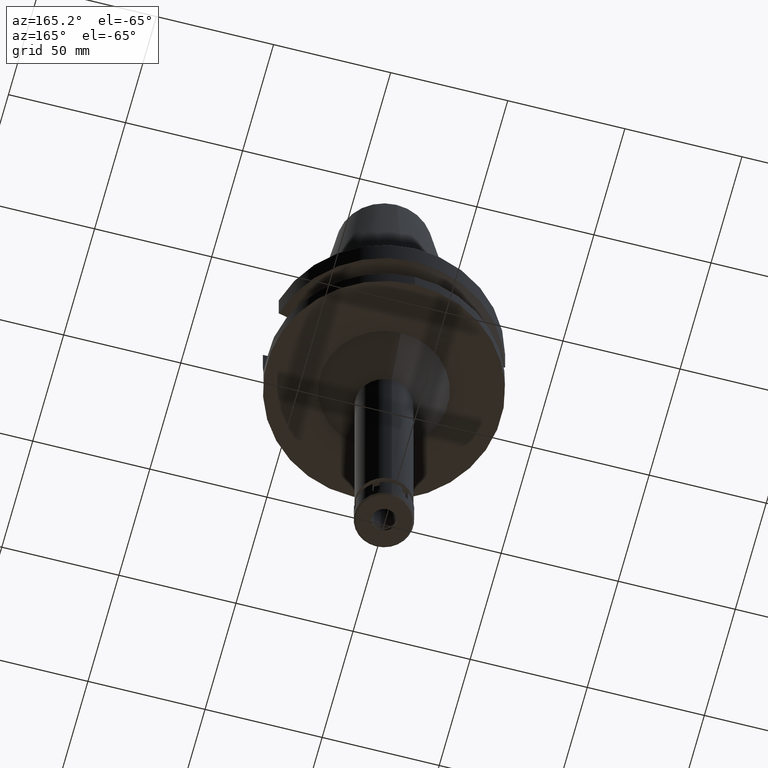
[diagram: clean part render]
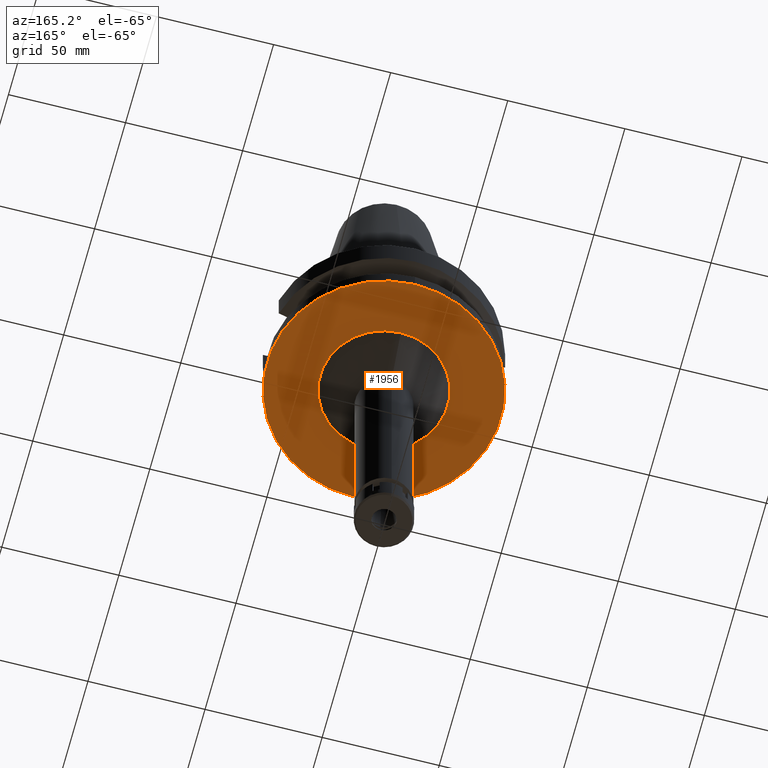
[diagram: same view with one face highlighted and labeled with its STEP entity id]
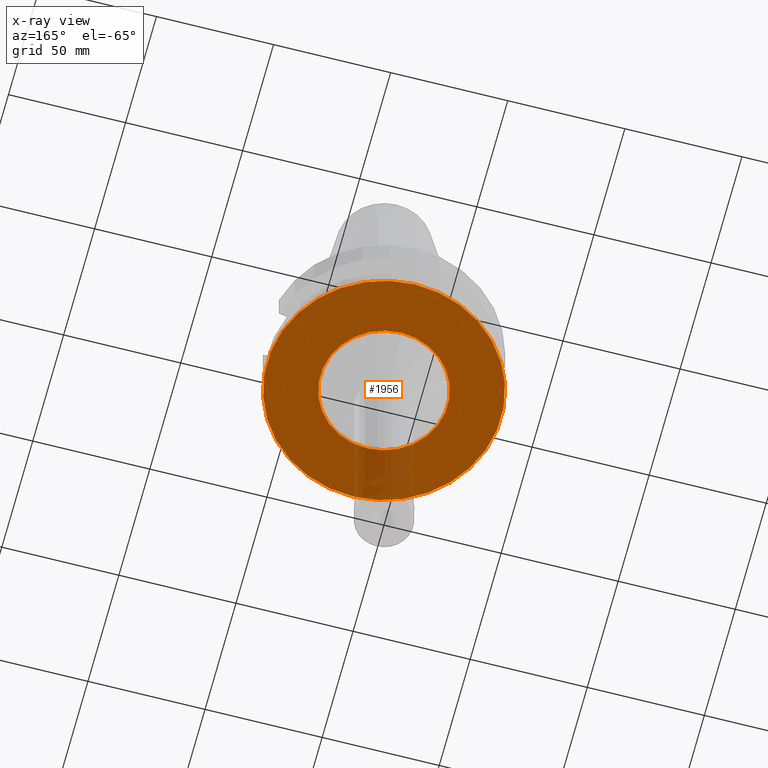
[diagram: x-ray of the same camera — body ghosted, the highlighted face saturated]
A machine part, auxiliary view. The second image highlights one B-rep face of the part: STEP entity #1956.
The next image is the same camera in x-ray: the body ghosted, the highlighted face saturated — about 10% of this face is hidden behind the body in this view.
In plain terms, the highlighted planar face has unit normal (0, 0, -1).
Its self-contained STEP definition (entity closure, byte-faithful):
#22 = CARTESIAN_POINT ( 'NONE',  ( 0.0000000000000000000, 0.0000000000000000000, -38.00000000000000000 ) ) ;
#61 = PLANE ( 'NONE',  #2738 ) ;
#264 = CARTESIAN_POINT ( 'NONE',  ( 0.0000000000000000000, 2.631031183287999807E-14, -38.00000000000000000 ) ) ;
#272 = CARTESIAN_POINT ( 'NONE',  ( 0.0000000000000000000, -50.00000000000000000, -38.00000000000000000 ) ) ;
#323 = DIRECTION ( 'NONE',  ( 0.0000000000000000000, 1.000000000000000000, 0.0000000000000000000 ) ) ;
#362 = FACE_BOUND ( 'NONE', #3093, .T. ) ;
#413 = AXIS2_PLACEMENT_3D ( 'NONE', #264, #609, #2019 ) ;
#519 = AXIS2_PLACEMENT_3D ( 'NONE', #2979, #3539, #966 ) ;
#609 = DIRECTION ( 'NONE',  ( 0.0000000000000000000, 0.0000000000000000000, 1.000000000000000000 ) ) ;
#748 = ORIENTED_EDGE ( 'NONE', *, *, #3206, .F. ) ;
#818 = CARTESIAN_POINT ( 'NONE',  ( 0.0000000000000000000, 50.00000000000000000, -38.00000000000000000 ) ) ;
#903 = DIRECTION ( 'NONE',  ( 0.0000000000000000000, 0.0000000000000000000, -1.000000000000000000 ) ) ;
#966 = DIRECTION ( 'NONE',  ( 0.0000000000000000000, -1.000000000000000000, 0.0000000000000000000 ) ) ;
#1160 = AXIS2_PLACEMENT_3D ( 'NONE', #22, #903, #323 ) ;
#1161 = AXIS2_PLACEMENT_3D ( 'NONE', #3228, #2966, #3514 ) ;
#1177 = CARTESIAN_POINT ( 'NONE',  ( 0.0000000000000000000, 0.0000000000000000000, -38.00000000000000000 ) ) ;
#1333 = VERTEX_POINT ( 'NONE', #818 ) ;
#1353 = CIRCLE ( 'NONE', #413, 50.00000000000000000 ) ;
#1377 = CARTESIAN_POINT ( 'NONE',  ( 0.0000000000000000000, -27.25000000000000000, -38.00000000000000000 ) ) ;
#1437 = DIRECTION ( 'NONE',  ( 0.0000000000000000000, 0.0000000000000000000, -1.000000000000000000 ) ) ;
#1651 = EDGE_CURVE ( 'NONE', #3308, #1333, #2297, .T. ) ;
#1956 = ADVANCED_FACE ( 'NONE', ( #2021, #362 ), #61, .T. ) ;
#2019 = DIRECTION ( 'NONE',  ( 0.0000000000000000000, 1.000000000000000000, 0.0000000000000000000 ) ) ;
#2021 = FACE_OUTER_BOUND ( 'NONE', #2222, .T. ) ;
#2222 = EDGE_LOOP ( 'NONE', ( #3693, #3323 ) ) ;
#2277 = EDGE_CURVE ( 'NONE', #1333, #3308, #1353, .T. ) ;
#2297 = CIRCLE ( 'NONE', #519, 50.00000000000000000 ) ;
#2318 = VERTEX_POINT ( 'NONE', #2628 ) ;
#2527 = CIRCLE ( 'NONE', #1160, 27.25000000000000000 ) ;
#2628 = CARTESIAN_POINT ( 'NONE',  ( 0.0000000000000000000, 27.25000000000000000, -38.00000000000000000 ) ) ;
#2738 = AXIS2_PLACEMENT_3D ( 'NONE', #1177, #1437, #3188 ) ;
#2773 = CIRCLE ( 'NONE', #1161, 27.25000000000000000 ) ;
#2966 = DIRECTION ( 'NONE',  ( 0.0000000000000000000, 0.0000000000000000000, -1.000000000000000000 ) ) ;
#2979 = CARTESIAN_POINT ( 'NONE',  ( 0.0000000000000000000, 2.631031183287999807E-14, -38.00000000000000000 ) ) ;
#3093 = EDGE_LOOP ( 'NONE', ( #748, #3368 ) ) ;
#3188 = DIRECTION ( 'NONE',  ( 0.0000000000000000000, -1.000000000000000000, 0.0000000000000000000 ) ) ;
#3206 = EDGE_CURVE ( 'NONE', #2318, #3591, #2527, .T. ) ;
#3228 = CARTESIAN_POINT ( 'NONE',  ( 0.0000000000000000000, 0.0000000000000000000, -38.00000000000000000 ) ) ;
#3308 = VERTEX_POINT ( 'NONE', #272 ) ;
#3323 = ORIENTED_EDGE ( 'NONE', *, *, #1651, .F. ) ;
#3368 = ORIENTED_EDGE ( 'NONE', *, *, #3457, .F. ) ;
#3457 = EDGE_CURVE ( 'NONE', #3591, #2318, #2773, .T. ) ;
#3514 = DIRECTION ( 'NONE',  ( 0.0000000000000000000, -1.000000000000000000, 0.0000000000000000000 ) ) ;
#3539 = DIRECTION ( 'NONE',  ( 0.0000000000000000000, 0.0000000000000000000, 1.000000000000000000 ) ) ;
#3591 = VERTEX_POINT ( 'NONE', #1377 ) ;
#3693 = ORIENTED_EDGE ( 'NONE', *, *, #2277, .F. ) ;